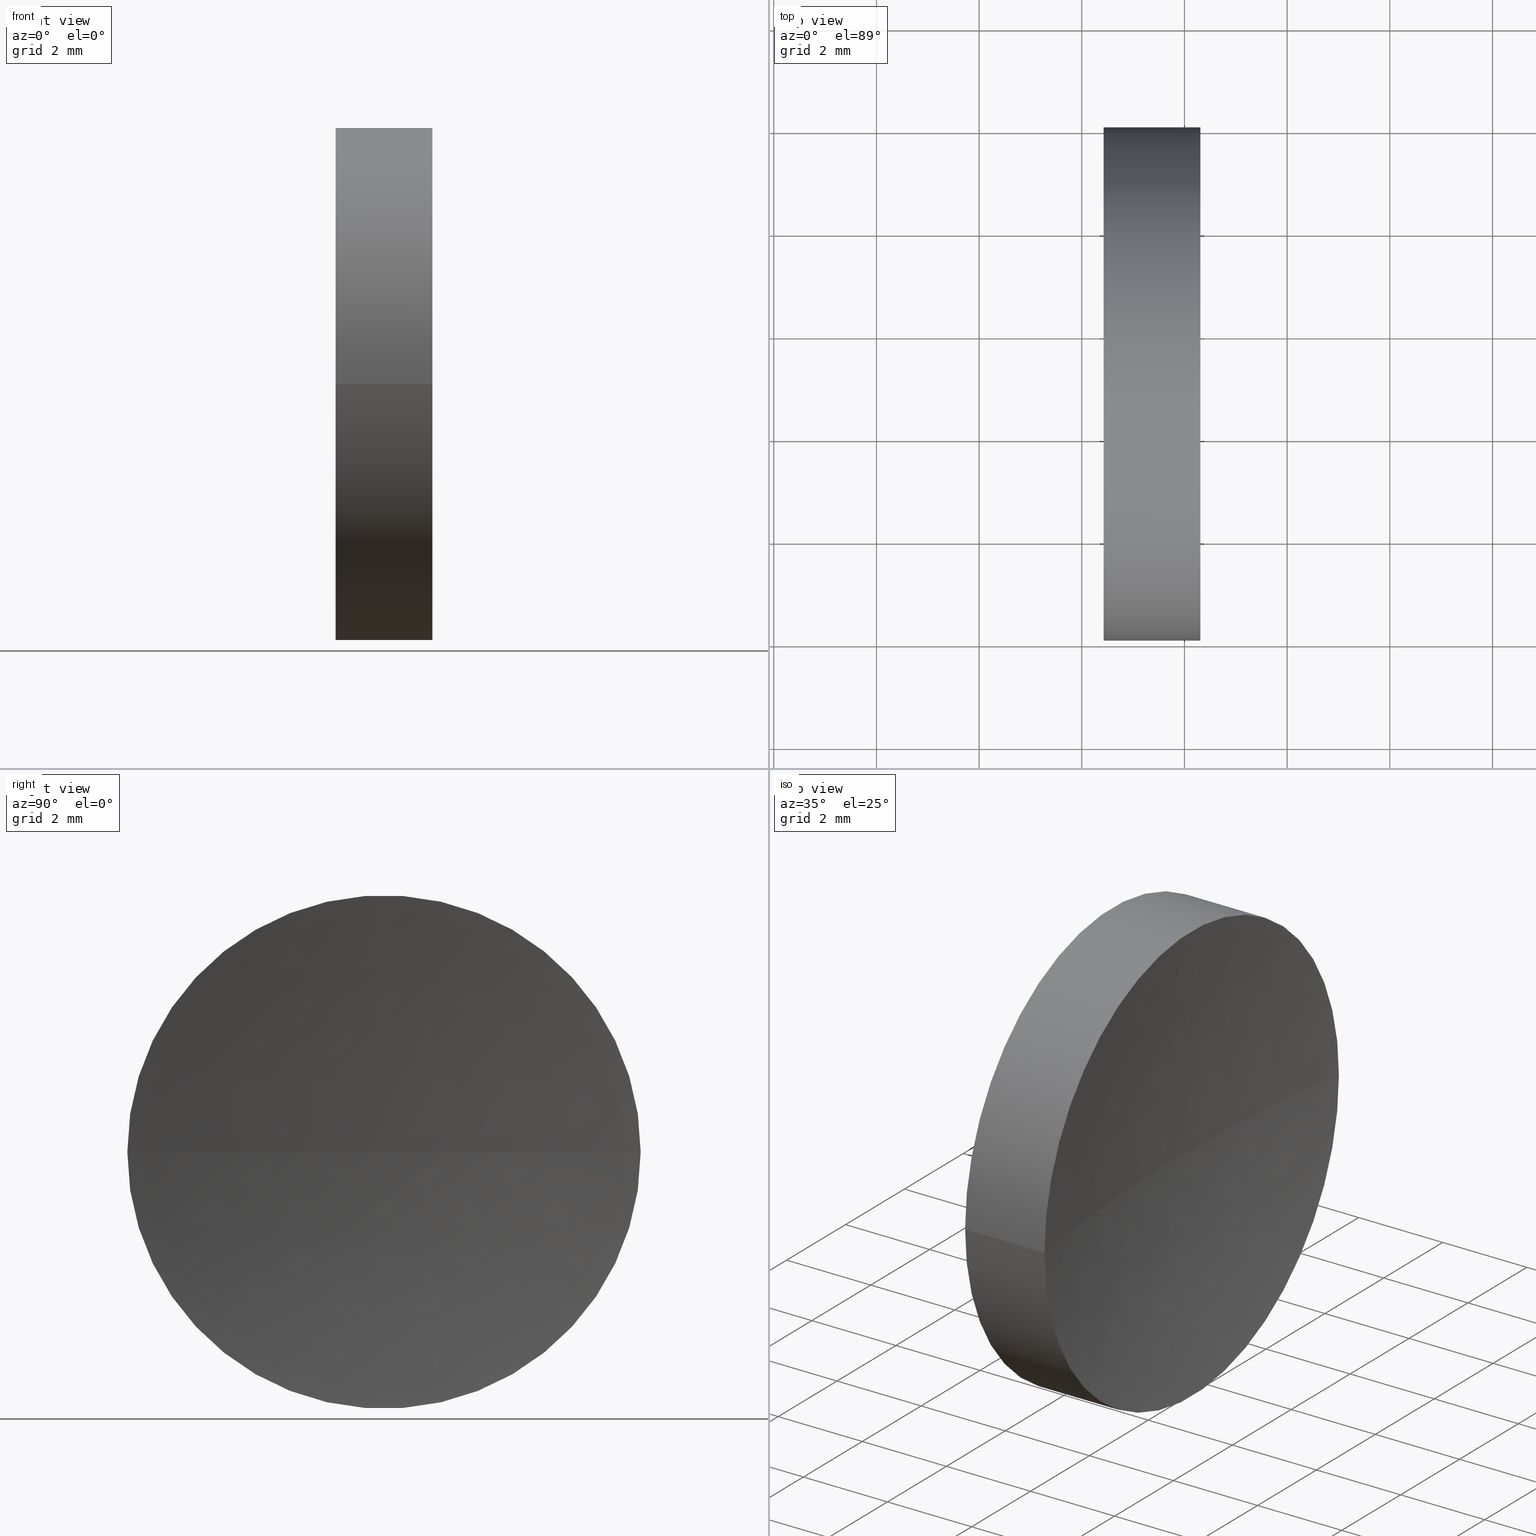
[diagram: canonical four-view strip — front | top / right | iso, engineering-drawing reading convention]
A machine part, canonical four-view strip (front | top / right | iso — engineering-drawing reading convention). The complete STEP part file that produces these views, byte-faithful:
ISO-10303-21;
HEADER;
FILE_DESCRIPTION (( 'STEP AP214' ),
    '1' );
FILE_NAME ('120137.STEP',
    '2019-06-19T07:19:16',
    ( '' ),
    ( '' ),
    'SwSTEP 2.0',
    'SolidWorks 2016',
    '' );
FILE_SCHEMA (( 'AUTOMOTIVE_DESIGN' ));
ENDSEC;

DATA;
#1 = ORIENTED_EDGE ( 'NONE', *, *, #104, .T. ) ;
#2 = CARTESIAN_POINT ( 'NONE',  ( 22.42423205362066000, 18.03112609140304200, 6.123233995736768300E-016 ) ) ;
#3 = DIRECTION ( 'NONE',  ( 1.000000000000000000, -3.159171411554934600E-016, 0.0000000000000000000 ) ) ;
#4 = APPLICATION_CONTEXT ( 'automotive_design' ) ;
#5 = CARTESIAN_POINT ( 'NONE',  ( 24.31115060695783500, 13.03112609140304000, 0.0000000000000000000 ) ) ;
#6 = FACE_OUTER_BOUND ( 'NONE', #15, .T. ) ;
#7 = DIRECTION ( 'NONE',  ( 2.135044278125300100E-016, 1.000000000000000000, 0.0000000000000000000 ) ) ;
#8 = EDGE_CURVE ( 'NONE', #35, #101, #81, .T. ) ;
#9 = VERTEX_POINT ( 'NONE', #2 ) ;
#10 = EDGE_CURVE ( 'NONE', #36, #101, #20, .T. ) ;
#11 = DIRECTION ( 'NONE',  ( -1.000000000000000000, 3.159171411554934600E-016, -0.0000000000000000000 ) ) ;
#12 =( GEOMETRIC_REPRESENTATION_CONTEXT ( 3 ) GLOBAL_UNCERTAINTY_ASSIGNED_CONTEXT ( ( #160 ) ) GLOBAL_UNIT_ASSIGNED_CONTEXT ( ( #17, #163, #128 ) ) REPRESENTATION_CONTEXT ( 'NONE', 'WORKASPACE' ) );
#13 = FILL_AREA_STYLE ('',( #105 ) ) ;
#14 = DIRECTION ( 'NONE',  ( -1.000000000000000000, 3.159171411554934600E-016, -0.0000000000000000000 ) ) ;
#15 = EDGE_LOOP ( 'NONE', ( #147, #135 ) ) ;
#16 = SURFACE_STYLE_USAGE ( .BOTH. , #123 ) ;
#17 =( LENGTH_UNIT ( ) NAMED_UNIT ( * ) SI_UNIT ( .MILLI., .METRE. ) );
#18 = EDGE_CURVE ( 'NONE', #36, #114, #113, .T. ) ;
#19 =( NAMED_UNIT ( * ) PLANE_ANGLE_UNIT ( ) SI_UNIT ( $, .RADIAN. ) );
#20 = CIRCLE ( 'NONE', #32, 32.50000000000001400 ) ;
#21 = ORIENTED_EDGE ( 'NONE', *, *, #39, .T. ) ;
#22 = VECTOR ( 'NONE', #78, 1000.000000000000000 ) ;
#23 = PRODUCT_DEFINITION_FORMATION_WITH_SPECIFIED_SOURCE ( '�κ�', '', #118, .NOT_KNOWN. ) ;
#24 = EDGE_CURVE ( 'NONE', #114, #9, #150, .T. ) ;
#25 = CARTESIAN_POINT ( 'NONE',  ( 22.42423205362066000, 13.03112609140304200, 0.0000000000000000000 ) ) ;
#26 = DIRECTION ( 'NONE',  ( 0.0000000000000000000, -1.000000000000000000, 0.0000000000000000000 ) ) ;
#27 = ORIENTED_EDGE ( 'NONE', *, *, #48, .F. ) ;
#28 = CARTESIAN_POINT ( 'NONE',  ( 22.42423205362066000, 13.03112609140304200, 0.0000000000000000000 ) ) ;
#29 = PLANE ( 'NONE',  #82 ) ;
#30 = DIRECTION ( 'NONE',  ( -1.000000000000000000, 3.159171411554934600E-016, -0.0000000000000000000 ) ) ;
#31 = CYLINDRICAL_SURFACE ( 'NONE', #102, 5.000000000000000900 ) ;
#32 = AXIS2_PLACEMENT_3D ( 'NONE', #44, #71, #157 ) ;
#33 = ORIENTED_EDGE ( 'NONE', *, *, #8, .T. ) ;
#34 = CARTESIAN_POINT ( 'NONE',  ( 21.50597511808246100, 18.03112609140304200, 6.123233995736768300E-016 ) ) ;
#35 = VERTEX_POINT ( 'NONE', #43 ) ;
#36 = VERTEX_POINT ( 'NONE', #143 ) ;
#37 = ORIENTED_EDGE ( 'NONE', *, *, #24, .F. ) ;
#38 = ADVANCED_FACE ( 'NONE', ( #72 ), #111, .F. ) ;
#39 = EDGE_CURVE ( 'NONE', #35, #36, #117, .T. ) ;
#40 = MANIFOLD_SOLID_BREP ( '��ת1', #69 ) ;
#41 = AXIS2_PLACEMENT_3D ( 'NONE', #73, #85, #86 ) ;
#42 = VECTOR ( 'NONE', #155, 1000.000000000000000 ) ;
#43 = CARTESIAN_POINT ( 'NONE',  ( 24.31115060695783800, 18.03112609140307800, 0.0000000000000000000 ) ) ;
#44 = CARTESIAN_POINT ( 'NONE',  ( 56.42423205362066300, 13.03112609140303100, 0.0000000000000000000 ) ) ;
#45 = ADVANCED_BREP_SHAPE_REPRESENTATION ( '120137', ( #40, #70 ), #12 ) ;
#46 =( LENGTH_UNIT ( ) NAMED_UNIT ( * ) SI_UNIT ( .MILLI., .METRE. ) );
#47 = DIRECTION ( 'NONE',  ( 0.0000000000000000000, 0.0000000000000000000, 1.000000000000000000 ) ) ;
#48 = EDGE_CURVE ( 'NONE', #35, #9, #109, .T. ) ;
#49 = DIRECTION ( 'NONE',  ( 0.0000000000000000000, -1.000000000000000000, 0.0000000000000000000 ) ) ;
#50 = CARTESIAN_POINT ( 'NONE',  ( 21.50597511808246100, 13.03112609140304200, 0.0000000000000000000 ) ) ;
#51 = ORIENTED_EDGE ( 'NONE', *, *, #151, .F. ) ;
#52 = DIRECTION ( 'NONE',  ( 1.000000000000000000, 0.0000000000000000000, 0.0000000000000000000 ) ) ;
#53 = FACE_OUTER_BOUND ( 'NONE', #87, .T. ) ;
#54 = CARTESIAN_POINT ( 'NONE',  ( 56.42423205362066300, 13.03112609140303100, 0.0000000000000000000 ) ) ;
#55 = EDGE_LOOP ( 'NONE', ( #76, #161, #91 ) ) ;
#56 = PRESENTATION_LAYER_ASSIGNMENT (  '', '', ( #112 ) ) ;
#57 =( GEOMETRIC_REPRESENTATION_CONTEXT ( 3 ) GLOBAL_UNCERTAINTY_ASSIGNED_CONTEXT ( ( #141 ) ) GLOBAL_UNIT_ASSIGNED_CONTEXT ( ( #46, #74, #125 ) ) REPRESENTATION_CONTEXT ( 'NONE', 'WORKASPACE' ) );
#58 = PRESENTATION_STYLE_ASSIGNMENT (( #106 ) ) ;
#59 = AXIS2_PLACEMENT_3D ( 'NONE', #25, #11, #120 ) ;
#60 = PRODUCT_RELATED_PRODUCT_CATEGORY ( 'part', '', ( #118 ) ) ;
#61 = DIRECTION ( 'NONE',  ( 1.000000000000000000, 0.0000000000000000000, 0.0000000000000000000 ) ) ;
#62 = ORIENTED_EDGE ( 'NONE', *, *, #39, .F. ) ;
#63 = AXIS2_PLACEMENT_3D ( 'NONE', #142, #145, #61 ) ;
#64 = CARTESIAN_POINT ( 'NONE',  ( 21.50597511808246100, 8.031126091403040200, 0.0000000000000000000 ) ) ;
#65 = FILL_AREA_STYLE_COLOUR ( '', #98 ) ;
#66 = AXIS2_PLACEMENT_3D ( 'NONE', #107, #122, #26 ) ;
#67 = DIRECTION ( 'NONE',  ( 0.0000000000000000000, -1.000000000000000000, 0.0000000000000000000 ) ) ;
#68 = STYLED_ITEM ( 'NONE', ( #58 ), #40 ) ;
#69 = CLOSED_SHELL ( 'NONE', ( #131, #38, #164, #154, #80 ) ) ;
#70 = AXIS2_PLACEMENT_3D ( 'NONE', #138, #47, #52 ) ;
#71 = DIRECTION ( 'NONE',  ( 3.868869157118576300E-032, 1.224646799147353200E-016, -1.000000000000000000 ) ) ;
#72 = FACE_OUTER_BOUND ( 'NONE', #55, .T. ) ;
#73 = CARTESIAN_POINT ( 'NONE',  ( 56.42423205362066300, 13.03112609140303100, 0.0000000000000000000 ) ) ;
#74 =( NAMED_UNIT ( * ) PLANE_ANGLE_UNIT ( ) SI_UNIT ( $, .RADIAN. ) );
#75 = DIRECTION ( 'NONE',  ( 0.0000000000000000000, -1.000000000000000000, 0.0000000000000000000 ) ) ;
#76 = ORIENTED_EDGE ( 'NONE', *, *, #104, .F. ) ;
#77 = PRESENTATION_LAYER_ASSIGNMENT (  '', '', ( #68 ) ) ;
#78 = DIRECTION ( 'NONE',  ( -1.000000000000000000, 3.159171411554934600E-016, -0.0000000000000000000 ) ) ;
#79 = CYLINDRICAL_SURFACE ( 'NONE', #134, 5.000000000000000900 ) ;
#80 = ADVANCED_FACE ( 'NONE', ( #6 ), #29, .F. ) ;
#81 = CIRCLE ( 'NONE', #63, 32.50000000000000700 ) ;
#82 = AXIS2_PLACEMENT_3D ( 'NONE', #159, #3, #137 ) ;
#83 = PRODUCT_DEFINITION ( 'δ֪', '', #23, #103 ) ;
#84 = SPHERICAL_SURFACE ( 'NONE', #166, 32.50000000000000700 ) ;
#85 = DIRECTION ( 'NONE',  ( 0.0000000000000000000, 0.0000000000000000000, -1.000000000000000000 ) ) ;
#86 = DIRECTION ( 'NONE',  ( 2.135044278125300100E-016, 1.000000000000000000, 0.0000000000000000000 ) ) ;
#87 = EDGE_LOOP ( 'NONE', ( #1, #153, #37, #144 ) ) ;
#88 = MECHANICAL_DESIGN_GEOMETRIC_PRESENTATION_REPRESENTATION (  '', ( #68 ), #57 ) ;
#89 = DIRECTION ( 'NONE',  ( -1.000000000000000000, 3.159171411554934600E-016, -0.0000000000000000000 ) ) ;
#90 = FILL_AREA_STYLE ('',( #65 ) ) ;
#91 = ORIENTED_EDGE ( 'NONE', *, *, #8, .F. ) ;
#92 = APPLICATION_PROTOCOL_DEFINITION ( 'draft international standard', 'automotive_design', 1998, #146 ) ;
#93 = AXIS2_PLACEMENT_3D ( 'NONE', #5, #89, #49 ) ;
#94 = FACE_OUTER_BOUND ( 'NONE', #97, .T. ) ;
#95 = DIRECTION ( 'NONE',  ( 0.0000000000000000000, 0.0000000000000000000, -1.000000000000000000 ) ) ;
#96 = SURFACE_STYLE_FILL_AREA ( #13 ) ;
#97 = EDGE_LOOP ( 'NONE', ( #27, #21, #165, #51 ) ) ;
#98 = COLOUR_RGB ( '',1.000000000000000000, 1.000000000000000000, 1.000000000000000000 ) ;
#99 = CIRCLE ( 'NONE', #93, 5.000000000000002700 ) ;
#100 = SHAPE_DEFINITION_REPRESENTATION ( #129, #45 ) ;
#101 = VERTEX_POINT ( 'NONE', #124 ) ;
#102 = AXIS2_PLACEMENT_3D ( 'NONE', #50, #110, #67 ) ;
#103 = PRODUCT_DEFINITION_CONTEXT ( 'detailed design', #4, 'design' ) ;
#104 = EDGE_CURVE ( 'NONE', #36, #35, #99, .T. ) ;
#105 = FILL_AREA_STYLE_COLOUR ( '', #119 ) ;
#106 = SURFACE_STYLE_USAGE ( .BOTH. , #136 ) ;
#107 = CARTESIAN_POINT ( 'NONE',  ( 24.31115060695783500, 13.03112609140304000, 0.0000000000000000000 ) ) ;
#108 =( NAMED_UNIT ( * ) SI_UNIT ( $, .STERADIAN. ) SOLID_ANGLE_UNIT ( ) );
#109 = LINE ( 'NONE', #34, #22 ) ;
#110 = DIRECTION ( 'NONE',  ( -1.000000000000000000, 3.159171411554934600E-016, -0.0000000000000000000 ) ) ;
#111 = SPHERICAL_SURFACE ( 'NONE', #41, 32.50000000000000700 ) ;
#112 = STYLED_ITEM ( 'NONE', ( #121 ), #45 ) ;
#113 = LINE ( 'NONE', #64, #42 ) ;
#114 = VERTEX_POINT ( 'NONE', #139 ) ;
#115 = UNCERTAINTY_MEASURE_WITH_UNIT (LENGTH_MEASURE( 1.000000000000000100E-005 ), #148, 'distance_accuracy_value', 'NONE');
#116 = CIRCLE ( 'NONE', #127, 5.000000000000000900 ) ;
#117 = CIRCLE ( 'NONE', #66, 5.000000000000002700 ) ;
#118 = PRODUCT ( '120137', '120137', '', ( #158 ) ) ;
#119 = COLOUR_RGB ( '',1.000000000000000000, 1.000000000000000000, 1.000000000000000000 ) ;
#120 = DIRECTION ( 'NONE',  ( 0.0000000000000000000, -1.000000000000000000, 0.0000000000000000000 ) ) ;
#121 = PRESENTATION_STYLE_ASSIGNMENT (( #16 ) ) ;
#122 = DIRECTION ( 'NONE',  ( -1.000000000000000000, 3.159171411554934600E-016, -0.0000000000000000000 ) ) ;
#123 = SURFACE_SIDE_STYLE ('',( #133 ) ) ;
#124 = CARTESIAN_POINT ( 'NONE',  ( 23.92423205362065300, 13.03112609140304400, 0.0000000000000000000 ) ) ;
#125 =( NAMED_UNIT ( * ) SI_UNIT ( $, .STERADIAN. ) SOLID_ANGLE_UNIT ( ) );
#126 = EDGE_LOOP ( 'NONE', ( #132, #62, #33 ) ) ;
#127 = AXIS2_PLACEMENT_3D ( 'NONE', #28, #30, #75 ) ;
#128 =( NAMED_UNIT ( * ) SI_UNIT ( $, .STERADIAN. ) SOLID_ANGLE_UNIT ( ) );
#129 = PRODUCT_DEFINITION_SHAPE ( 'NONE', 'NONE',  #83 ) ;
#130 = MECHANICAL_DESIGN_GEOMETRIC_PRESENTATION_REPRESENTATION (  '', ( #112 ), #140 ) ;
#131 = ADVANCED_FACE ( 'NONE', ( #53 ), #79, .T. ) ;
#132 = ORIENTED_EDGE ( 'NONE', *, *, #10, .F. ) ;
#133 = SURFACE_STYLE_FILL_AREA ( #90 ) ;
#134 = AXIS2_PLACEMENT_3D ( 'NONE', #162, #14, #152 ) ;
#135 = ORIENTED_EDGE ( 'NONE', *, *, #151, .T. ) ;
#136 = SURFACE_SIDE_STYLE ('',( #96 ) ) ;
#137 = DIRECTION ( 'NONE',  ( 3.159171411554934600E-016, 1.000000000000000000, 0.0000000000000000000 ) ) ;
#138 = CARTESIAN_POINT ( 'NONE',  ( 0.0000000000000000000, 0.0000000000000000000, 0.0000000000000000000 ) ) ;
#139 = CARTESIAN_POINT ( 'NONE',  ( 22.42423205362066000, 8.031126091403040200, 0.0000000000000000000 ) ) ;
#140 =( GEOMETRIC_REPRESENTATION_CONTEXT ( 3 ) GLOBAL_UNCERTAINTY_ASSIGNED_CONTEXT ( ( #115 ) ) GLOBAL_UNIT_ASSIGNED_CONTEXT ( ( #148, #19, #108 ) ) REPRESENTATION_CONTEXT ( 'NONE', 'WORKASPACE' ) );
#141 = UNCERTAINTY_MEASURE_WITH_UNIT (LENGTH_MEASURE( 1.000000000000000100E-005 ), #46, 'distance_accuracy_value', 'NONE');
#142 = CARTESIAN_POINT ( 'NONE',  ( 56.42423205362066300, 13.03112609140303100, 0.0000000000000000000 ) ) ;
#143 = CARTESIAN_POINT ( 'NONE',  ( 24.31115060695783800, 8.031126091403004700, -6.123233995736810700E-016 ) ) ;
#144 = ORIENTED_EDGE ( 'NONE', *, *, #18, .F. ) ;
#145 = DIRECTION ( 'NONE',  ( 0.0000000000000000000, 0.0000000000000000000, 1.000000000000000000 ) ) ;
#146 = APPLICATION_CONTEXT ( 'automotive_design' ) ;
#147 = ORIENTED_EDGE ( 'NONE', *, *, #24, .T. ) ;
#148 =( LENGTH_UNIT ( ) NAMED_UNIT ( * ) SI_UNIT ( .MILLI., .METRE. ) );
#149 = APPLICATION_PROTOCOL_DEFINITION ( 'draft international standard', 'automotive_design', 1998, #4 ) ;
#150 = CIRCLE ( 'NONE', #59, 5.000000000000000900 ) ;
#151 = EDGE_CURVE ( 'NONE', #9, #114, #116, .T. ) ;
#152 = DIRECTION ( 'NONE',  ( 0.0000000000000000000, -1.000000000000000000, 0.0000000000000000000 ) ) ;
#153 = ORIENTED_EDGE ( 'NONE', *, *, #48, .T. ) ;
#154 = ADVANCED_FACE ( 'NONE', ( #94 ), #31, .T. ) ;
#155 = DIRECTION ( 'NONE',  ( -1.000000000000000000, 3.159171411554934600E-016, -0.0000000000000000000 ) ) ;
#156 = FACE_OUTER_BOUND ( 'NONE', #126, .T. ) ;
#157 = DIRECTION ( 'NONE',  ( 0.0000000000000000000, 1.000000000000000000, 1.224646799147353200E-016 ) ) ;
#158 = PRODUCT_CONTEXT ( 'NONE', #146, 'mechanical' ) ;
#159 = CARTESIAN_POINT ( 'NONE',  ( 22.42423205362066000, 13.03112609140304200, 0.0000000000000000000 ) ) ;
#160 = UNCERTAINTY_MEASURE_WITH_UNIT (LENGTH_MEASURE( 1.000000000000000100E-005 ), #17, 'distance_accuracy_value', 'NONE');
#161 = ORIENTED_EDGE ( 'NONE', *, *, #10, .T. ) ;
#162 = CARTESIAN_POINT ( 'NONE',  ( 21.50597511808246100, 13.03112609140304200, 0.0000000000000000000 ) ) ;
#163 =( NAMED_UNIT ( * ) PLANE_ANGLE_UNIT ( ) SI_UNIT ( $, .RADIAN. ) );
#164 = ADVANCED_FACE ( 'NONE', ( #156 ), #84, .F. ) ;
#165 = ORIENTED_EDGE ( 'NONE', *, *, #18, .T. ) ;
#166 = AXIS2_PLACEMENT_3D ( 'NONE', #54, #95, #7 ) ;
ENDSEC;
END-ISO-10303-21;
